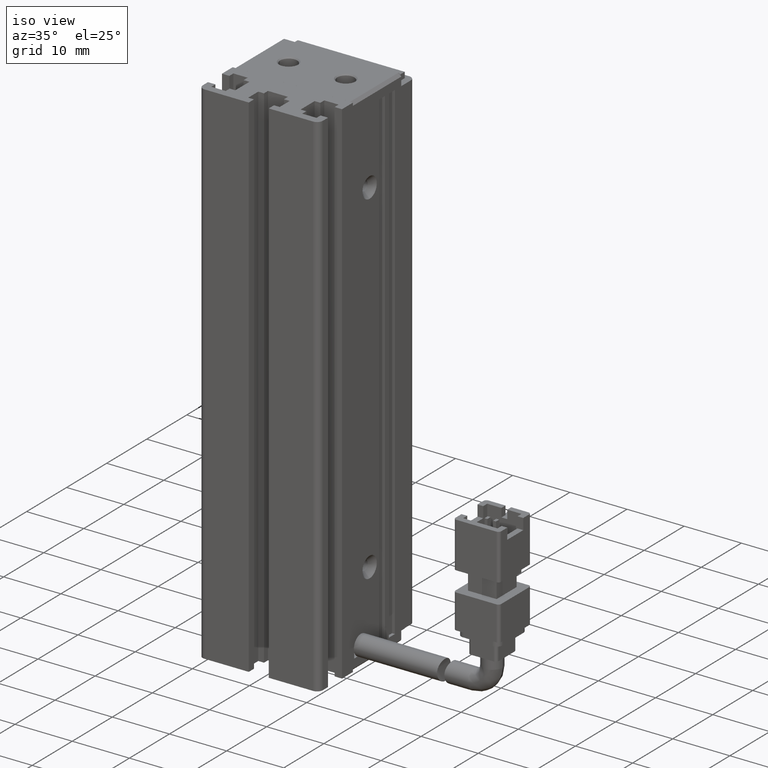
[diagram: clean part render]
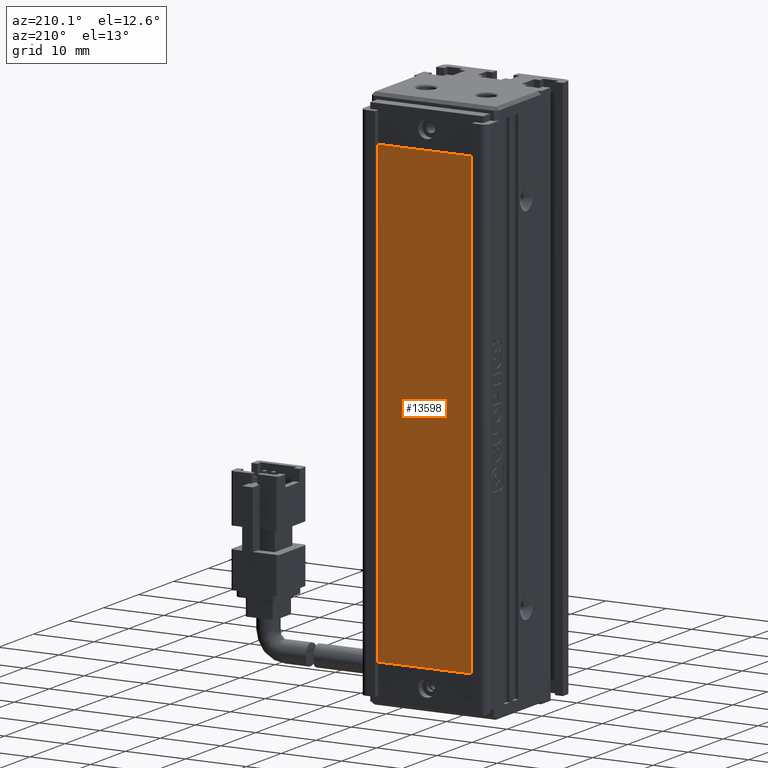
[diagram: tour spotlight — one face highlighted and labeled with its STEP entity id]
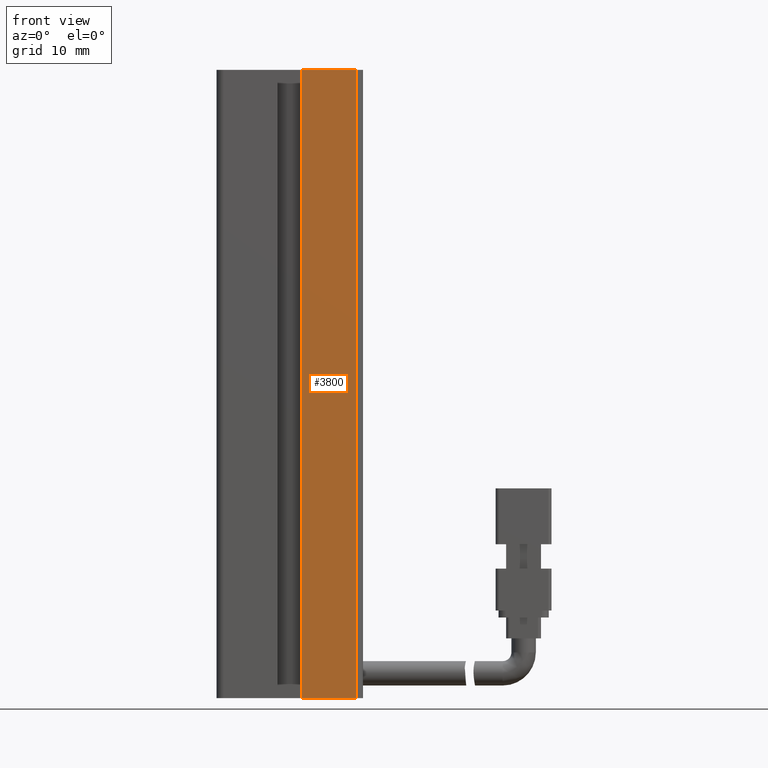
[diagram: tour spotlight — one face highlighted and labeled with its STEP entity id]
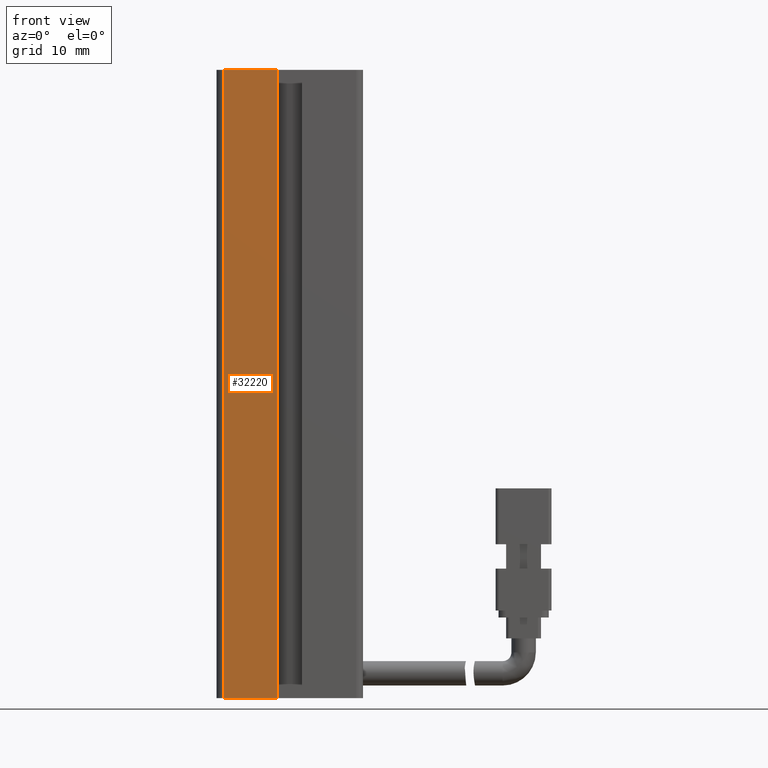
[diagram: tour spotlight — one face highlighted and labeled with its STEP entity id]
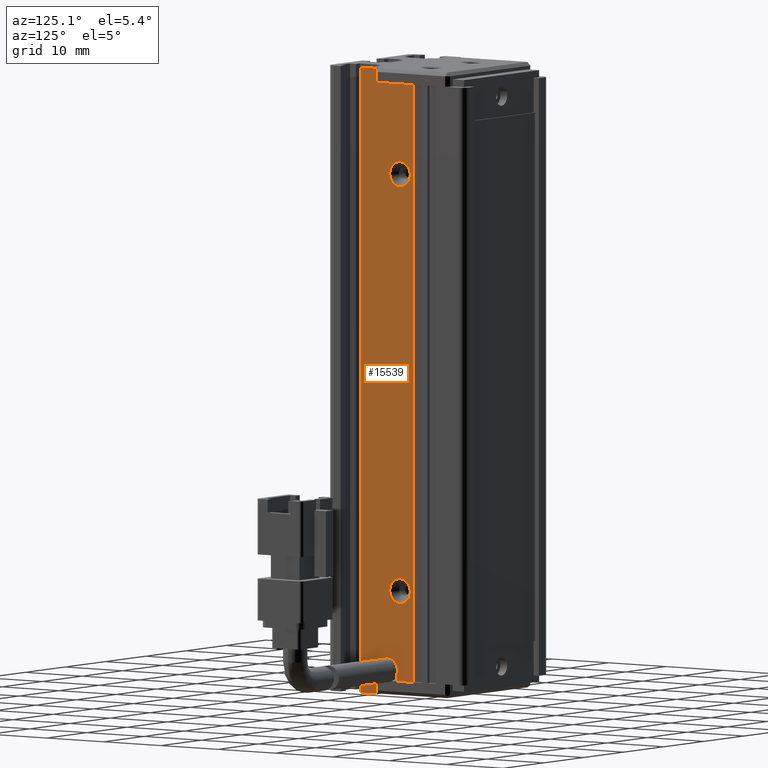
[diagram: tour spotlight — one face highlighted and labeled with its STEP entity id]
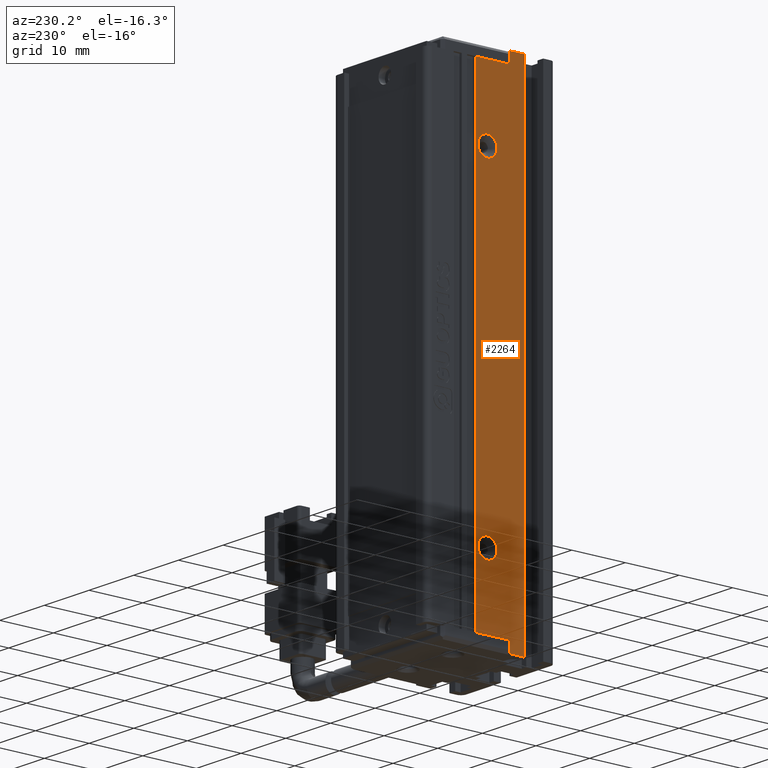
[diagram: tour spotlight — one face highlighted and labeled with its STEP entity id]
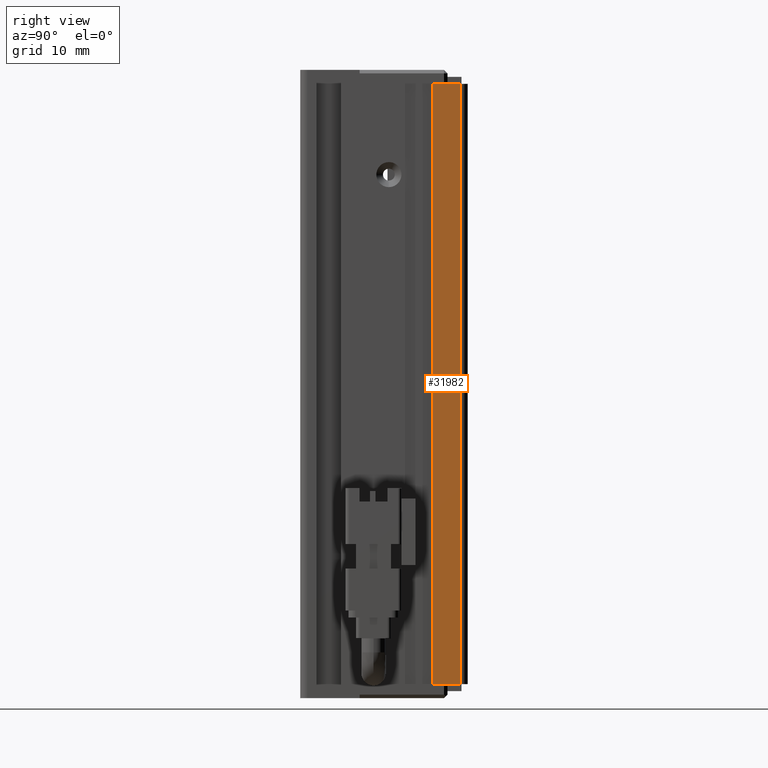
[diagram: tour spotlight — one face highlighted and labeled with its STEP entity id]
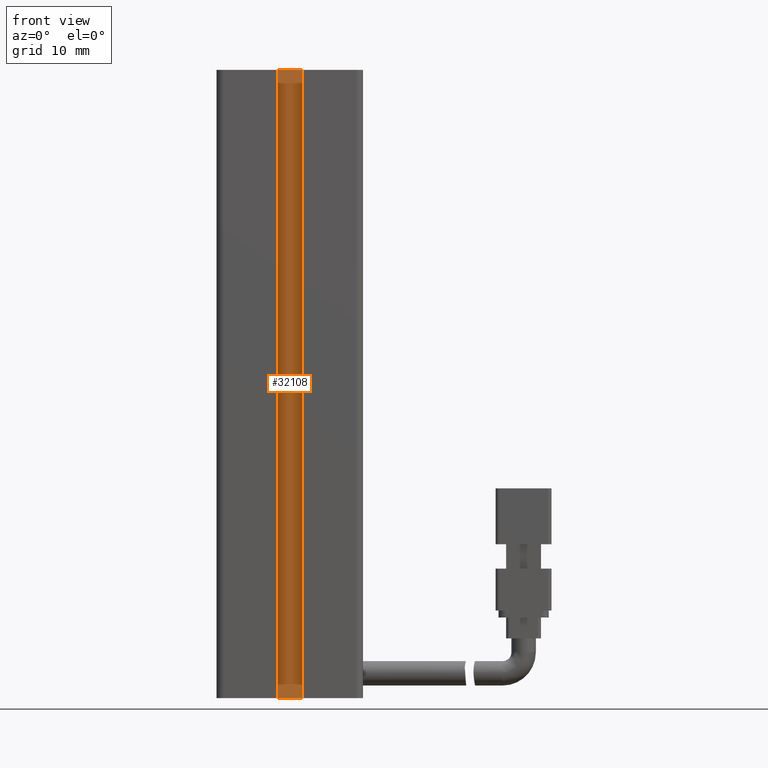
[diagram: tour spotlight — one face highlighted and labeled with its STEP entity id]
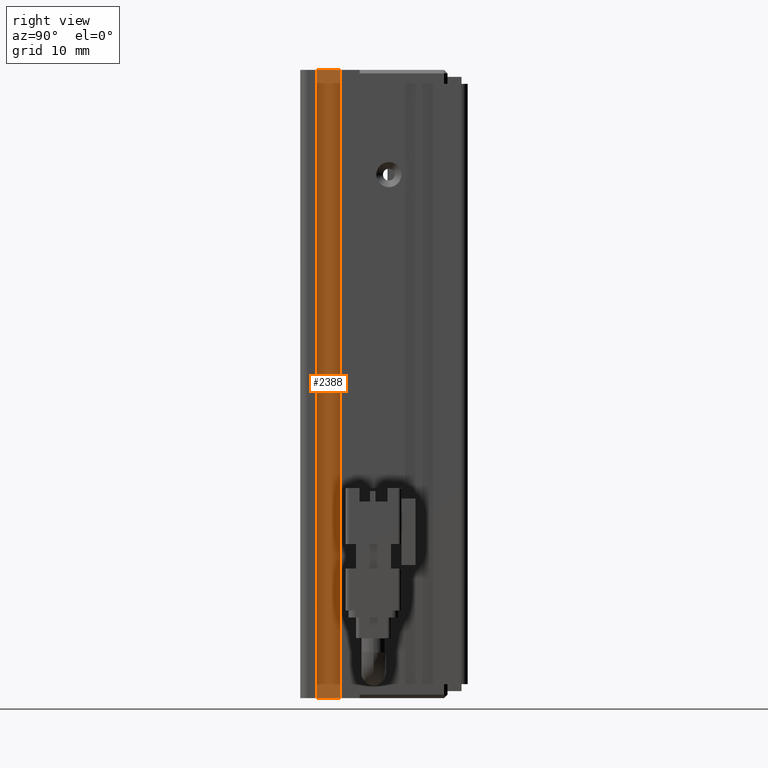
[diagram: tour spotlight — one face highlighted and labeled with its STEP entity id]
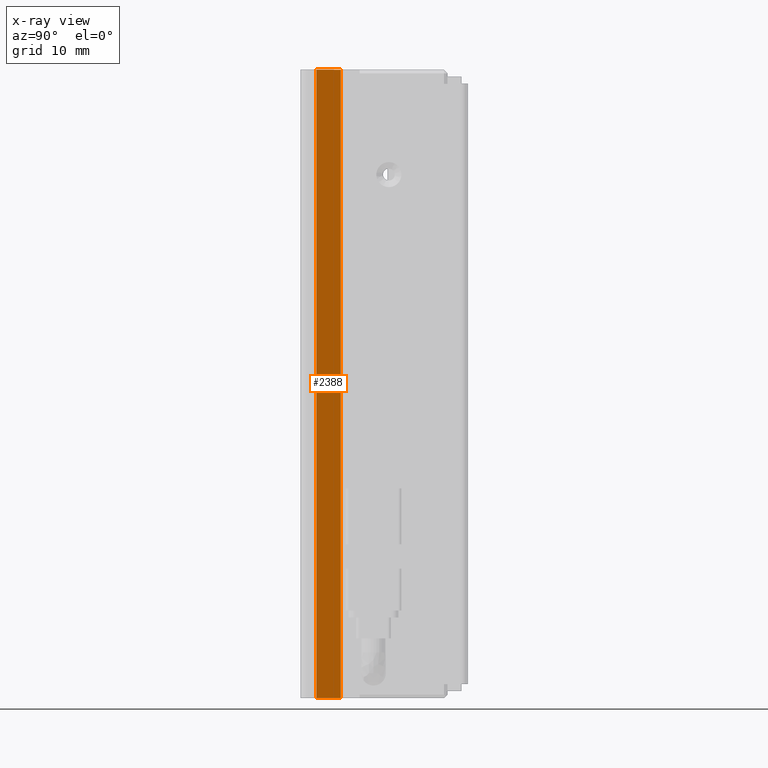
[diagram: x-ray of the same camera — body ghosted, this tour face saturated]
A machine part: a face-by-face anatomy tour. The part has 728 B-rep faces; the first image is the clean iso view, then the 8 largest visible faces are spotlighted one at a time (largest first), each with its STEP entity span.

Face 1 — auxiliary view, entity #13598. In plain terms, the highlighted planar face has unit normal (0, 1, 0).
Definition (entity closure, byte-faithful):
#2908 = CARTESIAN_POINT ( 'NONE',  ( 48.92537974683541800, 34.29073232304836700, -77.00000000000001400 ) ) ;
#4388 = DIRECTION ( 'NONE',  ( 0.0000000000000000000, 1.000000000000000000, 0.0000000000000000000 ) ) ;
#5056 = LINE ( 'NONE', #27077, #25943 ) ;
#5770 = ORIENTED_EDGE ( 'NONE', *, *, #15639, .T. ) ;
#5890 = VECTOR ( 'NONE', #11489, 1000.000000000000000 ) ;
#6105 = ORIENTED_EDGE ( 'NONE', *, *, #28098, .T. ) ;
#8307 = EDGE_CURVE ( 'NONE', #17371, #19993, #5056, .T. ) ;
#9202 = EDGE_CURVE ( 'NONE', #19993, #20214, #19381, .T. ) ;
#10523 = ORIENTED_EDGE ( 'NONE', *, *, #9202, .T. ) ;
#11387 = CARTESIAN_POINT ( 'NONE',  ( 32.92537974683542500, 34.29073232304836700, -153.0000000000000300 ) ) ;
#11489 = DIRECTION ( 'NONE',  ( 1.000000000000000000, 0.0000000000000000000, 0.0000000000000000000 ) ) ;
#13598 = ADVANCED_FACE ( 'NONE', ( #16987 ), #16823, .T. ) ;
#13846 = CARTESIAN_POINT ( 'NONE',  ( 32.92537974683542500, 34.29073232304836700, -77.00000000000001400 ) ) ;
#15639 = EDGE_CURVE ( 'NONE', #28703, #17371, #31903, .T. ) ;
#16823 = PLANE ( 'NONE',  #29497 ) ;
#16987 = FACE_OUTER_BOUND ( 'NONE', #21064, .T. ) ;
#17371 = VERTEX_POINT ( 'NONE', #18550 ) ;
#17803 = VECTOR ( 'NONE', #23636, 1000.000000000000000 ) ;
#18550 = CARTESIAN_POINT ( 'NONE',  ( 48.92537974683541800, 34.29073232304836700, -153.0000000000000300 ) ) ;
#19381 = LINE ( 'NONE', #11387, #17803 ) ;
#19993 = VERTEX_POINT ( 'NONE', #23622 ) ;
#20214 = VERTEX_POINT ( 'NONE', #32039 ) ;
#20246 = CARTESIAN_POINT ( 'NONE',  ( 48.92537974683541800, 34.29073232304836700, -77.00000000000001400 ) ) ;
#21064 = EDGE_LOOP ( 'NONE', ( #10523, #6105, #5770, #25595 ) ) ;
#21856 = DIRECTION ( 'NONE',  ( -1.000000000000000000, 0.0000000000000000000, 0.0000000000000000000 ) ) ;
#22009 = CARTESIAN_POINT ( 'NONE',  ( 0.0000000000000000000, 34.29073232304836700, 0.0000000000000000000 ) ) ;
#22548 = LINE ( 'NONE', #13846, #5890 ) ;
#23622 = CARTESIAN_POINT ( 'NONE',  ( 32.92537974683542500, 34.29073232304836700, -153.0000000000000300 ) ) ;
#23636 = DIRECTION ( 'NONE',  ( 0.0000000000000000000, 0.0000000000000000000, 1.000000000000000000 ) ) ;
#25595 = ORIENTED_EDGE ( 'NONE', *, *, #8307, .T. ) ;
#25943 = VECTOR ( 'NONE', #21856, 1000.000000000000000 ) ;
#27077 = CARTESIAN_POINT ( 'NONE',  ( 48.92537974683541800, 34.29073232304836700, -153.0000000000000300 ) ) ;
#27986 = VECTOR ( 'NONE', #29868, 1000.000000000000000 ) ;
#28098 = EDGE_CURVE ( 'NONE', #20214, #28703, #22548, .T. ) ;
#28703 = VERTEX_POINT ( 'NONE', #20246 ) ;
#29497 = AXIS2_PLACEMENT_3D ( 'NONE', #22009, #4388, #31641 ) ;
#29868 = DIRECTION ( 'NONE',  ( 0.0000000000000000000, 0.0000000000000000000, -1.000000000000000000 ) ) ;
#31641 = DIRECTION ( 'NONE',  ( 0.0000000000000000000, -0.0000000000000000000, 1.000000000000000000 ) ) ;
#31903 = LINE ( 'NONE', #2908, #27986 ) ;
#32039 = CARTESIAN_POINT ( 'NONE',  ( 32.92537974683542500, 34.29073232304836700, -77.00000000000001400 ) ) ;

Face 2 — front view, entity #3800. In plain terms, the highlighted planar face has unit normal (0, 1, 0).
Definition (entity closure, byte-faithful):
#171 = VERTEX_POINT ( 'NONE', #16653 ) ;
#2813 = DIRECTION ( 'NONE',  ( 0.0000000000000000000, 1.000000000000000000, 0.0000000000000000000 ) ) ;
#3394 = EDGE_LOOP ( 'NONE', ( #9412, #5244, #24351, #21993 ) ) ;
#3800 = ADVANCED_FACE ( 'NONE', ( #16662 ), #4821, .F. ) ;
#4821 = PLANE ( 'NONE',  #25162 ) ;
#5244 = ORIENTED_EDGE ( 'NONE', *, *, #8665, .F. ) ;
#6530 = VERTEX_POINT ( 'NONE', #26382 ) ;
#7306 = VECTOR ( 'NONE', #16198, 1000.000000000000000 ) ;
#7791 = CARTESIAN_POINT ( 'NONE',  ( 40.92537974683542500, 10.99073232304837000, -160.0000000000000000 ) ) ;
#8665 = EDGE_CURVE ( 'NONE', #23075, #6530, #9991, .T. ) ;
#9144 = VECTOR ( 'NONE', #17753, 1000.000000000000000 ) ;
#9412 = ORIENTED_EDGE ( 'NONE', *, *, #11932, .F. ) ;
#9991 = LINE ( 'NONE', #18501, #7306 ) ;
#10425 = VECTOR ( 'NONE', #20330, 1000.000000000000000 ) ;
#11932 = EDGE_CURVE ( 'NONE', #6530, #20677, #31885, .T. ) ;
#14674 = LINE ( 'NONE', #25311, #10425 ) ;
#16072 = CARTESIAN_POINT ( 'NONE',  ( 42.67537974683542500, 10.99073232304837000, -70.00000000000000000 ) ) ;
#16168 = EDGE_CURVE ( 'NONE', #171, #23075, #14674, .T. ) ;
#16198 = DIRECTION ( 'NONE',  ( 1.000000000000000000, 0.0000000000000000000, 0.0000000000000000000 ) ) ;
#16653 = CARTESIAN_POINT ( 'NONE',  ( 42.67537974683542500, 10.99073232304837000, -160.0000000000000000 ) ) ;
#16662 = FACE_OUTER_BOUND ( 'NONE', #3394, .T. ) ;
#17753 = DIRECTION ( 'NONE',  ( 1.000000000000000000, 0.0000000000000000000, 0.0000000000000000000 ) ) ;
#18501 = CARTESIAN_POINT ( 'NONE',  ( 40.92537974683542500, 10.99073232304837000, -70.00000000000000000 ) ) ;
#20330 = DIRECTION ( 'NONE',  ( 0.0000000000000000000, -0.0000000000000000000, 1.000000000000000000 ) ) ;
#20346 = EDGE_CURVE ( 'NONE', #171, #20677, #25405, .T. ) ;
#20677 = VERTEX_POINT ( 'NONE', #26199 ) ;
#21993 = ORIENTED_EDGE ( 'NONE', *, *, #20346, .T. ) ;
#23075 = VERTEX_POINT ( 'NONE', #16072 ) ;
#24351 = ORIENTED_EDGE ( 'NONE', *, *, #16168, .F. ) ;
#25162 = AXIS2_PLACEMENT_3D ( 'NONE', #27794, #2813, #27573 ) ;
#25311 = CARTESIAN_POINT ( 'NONE',  ( 42.67537974683542500, 10.99073232304837000, -70.00000000000000000 ) ) ;
#25405 = LINE ( 'NONE', #7791, #9144 ) ;
#26199 = CARTESIAN_POINT ( 'NONE',  ( 50.42537974683541800, 10.99073232304837000, -160.0000000000000000 ) ) ;
#26382 = CARTESIAN_POINT ( 'NONE',  ( 50.42537974683541800, 10.99073232304837000, -70.00000000000000000 ) ) ;
#26848 = DIRECTION ( 'NONE',  ( -0.0000000000000000000, 0.0000000000000000000, -1.000000000000000000 ) ) ;
#27573 = DIRECTION ( 'NONE',  ( 0.0000000000000000000, -0.0000000000000000000, 1.000000000000000000 ) ) ;
#27794 = CARTESIAN_POINT ( 'NONE',  ( 40.92537974683542500, 10.99073232304837000, -70.00000000000000000 ) ) ;
#30711 = VECTOR ( 'NONE', #26848, 1000.000000000000000 ) ;
#31885 = LINE ( 'NONE', #31896, #30711 ) ;
#31896 = CARTESIAN_POINT ( 'NONE',  ( 50.42537974683541800, 10.99073232304837000, -70.00000000000000000 ) ) ;

Face 3 — front view, entity #32220. In plain terms, the highlighted planar face has unit normal (0, -1, 0).
Definition (entity closure, byte-faithful):
#930 = DIRECTION ( 'NONE',  ( 0.0000000000000000000, -1.000000000000000000, 0.0000000000000000000 ) ) ;
#1557 = DIRECTION ( 'NONE',  ( 0.0000000000000000000, -0.0000000000000000000, -1.000000000000000000 ) ) ;
#3853 = CARTESIAN_POINT ( 'NONE',  ( 31.42537974683542900, 10.99073232304837000, -70.00000000000000000 ) ) ;
#3880 = VERTEX_POINT ( 'NONE', #7943 ) ;
#4912 = CARTESIAN_POINT ( 'NONE',  ( 39.17537974683542500, 10.99073232304837000, -70.00000000000000000 ) ) ;
#5185 = LINE ( 'NONE', #15061, #19899 ) ;
#5486 = ORIENTED_EDGE ( 'NONE', *, *, #30587, .T. ) ;
#5545 = DIRECTION ( 'NONE',  ( 1.000000000000000000, 0.0000000000000000000, 0.0000000000000000000 ) ) ;
#7943 = CARTESIAN_POINT ( 'NONE',  ( 31.42537974683542900, 10.99073232304837000, -70.00000000000000000 ) ) ;
#10907 = DIRECTION ( 'NONE',  ( 0.0000000000000000000, -0.0000000000000000000, -1.000000000000000000 ) ) ;
#10937 = VECTOR ( 'NONE', #1557, 1000.000000000000000 ) ;
#12715 = CARTESIAN_POINT ( 'NONE',  ( 39.17537974683542500, 10.99073232304837000, -160.0000000000000000 ) ) ;
#13167 = CARTESIAN_POINT ( 'NONE',  ( 40.92537974683542500, 10.99073232304837000, -70.00000000000000000 ) ) ;
#14332 = EDGE_LOOP ( 'NONE', ( #14405, #29187, #20142, #5486 ) ) ;
#14405 = ORIENTED_EDGE ( 'NONE', *, *, #18086, .F. ) ;
#14958 = VECTOR ( 'NONE', #16124, 1000.000000000000000 ) ;
#15061 = CARTESIAN_POINT ( 'NONE',  ( 40.92537974683542500, 10.99073232304837000, -70.00000000000000000 ) ) ;
#15824 = VECTOR ( 'NONE', #30501, 1000.000000000000000 ) ;
#16124 = DIRECTION ( 'NONE',  ( -0.0000000000000000000, 0.0000000000000000000, 1.000000000000000000 ) ) ;
#17980 = VERTEX_POINT ( 'NONE', #4912 ) ;
#18086 = EDGE_CURVE ( 'NONE', #3880, #17980, #5185, .T. ) ;
#19899 = VECTOR ( 'NONE', #5545, 1000.000000000000000 ) ;
#20142 = ORIENTED_EDGE ( 'NONE', *, *, #24153, .T. ) ;
#20176 = FACE_OUTER_BOUND ( 'NONE', #14332, .T. ) ;
#21313 = CARTESIAN_POINT ( 'NONE',  ( 31.42537974683542900, 10.99073232304837000, -160.0000000000000000 ) ) ;
#21325 = EDGE_CURVE ( 'NONE', #3880, #27375, #23780, .T. ) ;
#23780 = LINE ( 'NONE', #3853, #10937 ) ;
#24153 = EDGE_CURVE ( 'NONE', #27375, #27276, #25118, .T. ) ;
#25118 = LINE ( 'NONE', #28301, #15824 ) ;
#27276 = VERTEX_POINT ( 'NONE', #12715 ) ;
#27375 = VERTEX_POINT ( 'NONE', #21313 ) ;
#28301 = CARTESIAN_POINT ( 'NONE',  ( 40.92537974683542500, 10.99073232304837000, -160.0000000000000000 ) ) ;
#29167 = AXIS2_PLACEMENT_3D ( 'NONE', #13167, #930, #10907 ) ;
#29187 = ORIENTED_EDGE ( 'NONE', *, *, #21325, .T. ) ;
#30403 = CARTESIAN_POINT ( 'NONE',  ( 39.17537974683542500, 10.99073232304837000, -70.00000000000000000 ) ) ;
#30501 = DIRECTION ( 'NONE',  ( 1.000000000000000000, 0.0000000000000000000, 0.0000000000000000000 ) ) ;
#30587 = EDGE_CURVE ( 'NONE', #27276, #17980, #31725, .T. ) ;
#30728 = PLANE ( 'NONE',  #29167 ) ;
#31725 = LINE ( 'NONE', #30403, #14958 ) ;
#32220 = ADVANCED_FACE ( 'NONE', ( #20176 ), #30728, .T. ) ;

Face 4 — auxiliary view, entity #15539. In plain terms, the highlighted planar face has unit normal (-1, 0, 0).
Definition (entity closure, byte-faithful):
#315 = VERTEX_POINT ( 'NONE', #16830 ) ;
#378 = EDGE_CURVE ( 'NONE', #29339, #7699, #19004, .T. ) ;
#669 = CARTESIAN_POINT ( 'NONE',  ( 51.42537974683541800, 19.84073232304837100, -158.0000000000000000 ) ) ;
#697 = CARTESIAN_POINT ( 'NONE',  ( 51.42537974683541100, 21.49073232304837000, -156.4500000000000200 ) ) ;
#1064 = VECTOR ( 'NONE', #11114, 1000.000000000000000 ) ;
#1279 = CARTESIAN_POINT ( 'NONE',  ( 51.42537974684406500, 23.69073232304837300, -86.80000000011659700 ) ) ;
#1283 = EDGE_LOOP ( 'NONE', ( #17372, #28113 ) ) ;
#1512 = VECTOR ( 'NONE', #19646, 1000.000000000000000 ) ;
#1759 = ORIENTED_EDGE ( 'NONE', *, *, #24275, .F. ) ;
#1824 = CARTESIAN_POINT ( 'NONE',  ( 51.42537974683541800, 19.49073232304837000, -70.00000000000000000 ) ) ;
#2280 = DIRECTION ( 'NONE',  ( -0.0000000000000000000, -1.000000000000000000, 0.0000000000000000000 ) ) ;
#2363 = FACE_OUTER_BOUND ( 'NONE', #20242, .T. ) ;
#2832 = VECTOR ( 'NONE', #2280, 1000.000000000000000 ) ;
#3016 = AXIS2_PLACEMENT_3D ( 'NONE', #12590, #5469, #13022 ) ;
#3235 = VERTEX_POINT ( 'NONE', #10345 ) ;
#3367 = DIRECTION ( 'NONE',  ( 0.0000000000000000000, 0.0000000000000000000, -1.000000000000000000 ) ) ;
#3532 = LINE ( 'NONE', #1824, #14771 ) ;
#3637 = LINE ( 'NONE', #4705, #2832 ) ;
#3788 = CARTESIAN_POINT ( 'NONE',  ( 51.42537974683541800, 16.79073232304837000, -160.0000000000000000 ) ) ;
#3986 = EDGE_CURVE ( 'NONE', #8584, #25689, #19744, .T. ) ;
#4172 = VERTEX_POINT ( 'NONE', #20035 ) ;
#4283 = AXIS2_PLACEMENT_3D ( 'NONE', #7166, #19540, #4898 ) ;
#4705 = CARTESIAN_POINT ( 'NONE',  ( 51.42537974683541800, 7.083797468354437600, -160.0000000000000000 ) ) ;
#4724 = CARTESIAN_POINT ( 'NONE',  ( 51.42537974683541800, 19.49073232304837000, -158.0000000000000000 ) ) ;
#4779 = ORIENTED_EDGE ( 'NONE', *, *, #22777, .F. ) ;
#4898 = DIRECTION ( 'NONE',  ( 0.0000000000000000000, 0.0000000000000000000, -1.000000000000000000 ) ) ;
#4979 = ORIENTED_EDGE ( 'NONE', *, *, #28661, .F. ) ;
#5123 = CARTESIAN_POINT ( 'NONE',  ( 51.42537974683541100, 23.14073232304837200, -158.0000000000000000 ) ) ;
#5129 = CARTESIAN_POINT ( 'NONE',  ( 51.42537974683541800, 19.49073232304837000, -70.00000000000000000 ) ) ;
#5469 = DIRECTION ( 'NONE',  ( 1.000000000000000000, -0.0000000000000000000, 0.0000000000000000000 ) ) ;
#5592 = AXIS2_PLACEMENT_3D ( 'NONE', #28030, #12892, #3367 ) ;
#5746 = VERTEX_POINT ( 'NONE', #5123 ) ;
#6504 = CIRCLE ( 'NONE', #3016, 1.800000000116597200 ) ;
#6649 = FACE_BOUND ( 'NONE', #1283, .T. ) ;
#7166 = CARTESIAN_POINT ( 'NONE',  ( 51.42537974684406500, 23.69073232304837300, -85.00000000000000000 ) ) ;
#7470 = ORIENTED_EDGE ( 'NONE', *, *, #3986, .T. ) ;
#7502 = CARTESIAN_POINT ( 'NONE',  ( 51.42537974683541800, 7.083797468354437600, -70.00000000000000000 ) ) ;
#7699 = VERTEX_POINT ( 'NONE', #11877 ) ;
#7731 = VERTEX_POINT ( 'NONE', #24244 ) ;
#8008 = AXIS2_PLACEMENT_3D ( 'NONE', #20653, #30692, #15740 ) ;
#8584 = VERTEX_POINT ( 'NONE', #669 ) ;
#8813 = EDGE_CURVE ( 'NONE', #28478, #5746, #18920, .T. ) ;
#8845 = ORIENTED_EDGE ( 'NONE', *, *, #15537, .F. ) ;
#8915 = VERTEX_POINT ( 'NONE', #4724 ) ;
#9579 = DIRECTION ( 'NONE',  ( 0.0000000000000000000, 1.000000000000000000, -0.0000000000000000000 ) ) ;
#10345 = CARTESIAN_POINT ( 'NONE',  ( 51.42537974683542500, 19.49073232304837000, -72.00000000000001400 ) ) ;
#11114 = DIRECTION ( 'NONE',  ( -0.0000000000000000000, -0.0000000000000000000, -1.000000000000000000 ) ) ;
#11877 = CARTESIAN_POINT ( 'NONE',  ( 51.42537974683542500, 19.49073232304837000, -70.00000000000000000 ) ) ;
#12043 = CARTESIAN_POINT ( 'NONE',  ( 51.42537974683541100, 23.14073232304837200, -158.0000000000000000 ) ) ;
#12211 = EDGE_CURVE ( 'NONE', #18533, #4172, #16361, .T. ) ;
#12245 = AXIS2_PLACEMENT_3D ( 'NONE', #697, #28101, #20471 ) ;
#12335 = VECTOR ( 'NONE', #23043, 1000.000000000000000 ) ;
#12590 = CARTESIAN_POINT ( 'NONE',  ( 51.42537974684406500, 23.69073232304837300, -85.00000000000000000 ) ) ;
#12737 = ORIENTED_EDGE ( 'NONE', *, *, #378, .F. ) ;
#12752 = LINE ( 'NONE', #5129, #1512 ) ;
#12892 = DIRECTION ( 'NONE',  ( 1.000000000000000000, 0.0000000000000000000, 0.0000000000000000000 ) ) ;
#13022 = DIRECTION ( 'NONE',  ( 0.0000000000000000000, 0.0000000000000000000, -1.000000000000000000 ) ) ;
#13033 = CARTESIAN_POINT ( 'NONE',  ( 51.42537974683541800, 19.84073232304837100, -156.4500000000000200 ) ) ;
#13130 = CARTESIAN_POINT ( 'NONE',  ( 51.42537974683541800, 16.79073232304837000, -70.00000000000000000 ) ) ;
#13359 = DIRECTION ( 'NONE',  ( -0.0000000000000000000, -1.000000000000000000, 0.0000000000000000000 ) ) ;
#13464 = CARTESIAN_POINT ( 'NONE',  ( 51.42537974683541800, 25.99073232304837300, -70.00000000000000000 ) ) ;
#13819 = VECTOR ( 'NONE', #19665, 1000.000000000000000 ) ;
#14771 = VECTOR ( 'NONE', #29075, 1000.000000000000000 ) ;
#14910 = CARTESIAN_POINT ( 'NONE',  ( 51.42537974683541800, 16.79073232304837000, -70.00000000000000000 ) ) ;
#15068 = DIRECTION ( 'NONE',  ( 0.0000000000000000000, 1.000000000000000000, -0.0000000000000000000 ) ) ;
#15251 = EDGE_CURVE ( 'NONE', #31929, #29339, #19852, .T. ) ;
#15537 = EDGE_CURVE ( 'NONE', #17772, #19939, #29569, .T. ) ;
#15539 = ADVANCED_FACE ( 'NONE', ( #6649, #28017, #2363 ), #21785, .F. ) ;
#15740 = DIRECTION ( 'NONE',  ( 0.0000000000000000000, 0.0000000000000000000, -1.000000000000000000 ) ) ;
#16361 = CIRCLE ( 'NONE', #8008, 1.799999999975626700 ) ;
#16694 = CARTESIAN_POINT ( 'NONE',  ( 51.42537974683541100, 23.14073232304837200, -156.4499999999999900 ) ) ;
#16830 = CARTESIAN_POINT ( 'NONE',  ( 51.42537974683541800, 19.49073232304837000, -160.0000000000000000 ) ) ;
#17372 = ORIENTED_EDGE ( 'NONE', *, *, #12211, .F. ) ;
#17517 = VECTOR ( 'NONE', #29835, 1000.000000000000000 ) ;
#17772 = VERTEX_POINT ( 'NONE', #32161 ) ;
#18036 = EDGE_CURVE ( 'NONE', #315, #31929, #3637, .T. ) ;
#18156 = VERTEX_POINT ( 'NONE', #22866 ) ;
#18439 = EDGE_CURVE ( 'NONE', #315, #8915, #3532, .T. ) ;
#18533 = VERTEX_POINT ( 'NONE', #19201 ) ;
#18640 = VECTOR ( 'NONE', #19819, 1000.000000000000000 ) ;
#18825 = EDGE_CURVE ( 'NONE', #7731, #5746, #23236, .T. ) ;
#18920 = LINE ( 'NONE', #12043, #13819 ) ;
#19004 = LINE ( 'NONE', #7502, #25148 ) ;
#19201 = CARTESIAN_POINT ( 'NONE',  ( 51.42537974687135000, 23.69073232304837300, -146.7999999999756500 ) ) ;
#19540 = DIRECTION ( 'NONE',  ( 1.000000000000000000, -0.0000000000000000000, 0.0000000000000000000 ) ) ;
#19646 = DIRECTION ( 'NONE',  ( -0.0000000000000000000, 0.0000000000000000000, 1.000000000000000000 ) ) ;
#19665 = DIRECTION ( 'NONE',  ( -0.0000000000000000000, 2.238352872228134100E-015, -1.000000000000000000 ) ) ;
#19744 = LINE ( 'NONE', #30522, #12335 ) ;
#19819 = DIRECTION ( 'NONE',  ( -0.0000000000000000000, -1.000000000000000000, 0.0000000000000000000 ) ) ;
#19852 = LINE ( 'NONE', #14910, #17517 ) ;
#19939 = VERTEX_POINT ( 'NONE', #1279 ) ;
#20035 = CARTESIAN_POINT ( 'NONE',  ( 51.42537974687135000, 23.69073232304837300, -143.2000000000244000 ) ) ;
#20242 = EDGE_LOOP ( 'NONE', ( #7470, #23534, #26751, #28046, #1759, #4779, #24337, #12737, #25968, #31676, #28862, #4979 ) ) ;
#20471 = DIRECTION ( 'NONE',  ( 0.0000000000000000000, 1.000000000000000000, 0.0000000000000000000 ) ) ;
#20653 = CARTESIAN_POINT ( 'NONE',  ( 51.42537974687135000, 23.69073232304837300, -145.0000000000000300 ) ) ;
#21262 = LINE ( 'NONE', #13464, #1064 ) ;
#21410 = LINE ( 'NONE', #21719, #26855 ) ;
#21719 = CARTESIAN_POINT ( 'NONE',  ( 51.42537974683541800, 7.083797468354437600, -72.00000000000001400 ) ) ;
#21785 = PLANE ( 'NONE',  #28612 ) ;
#21996 = DIRECTION ( 'NONE',  ( 0.0000000000000000000, 0.0000000000000000000, 1.000000000000000000 ) ) ;
#22777 = EDGE_CURVE ( 'NONE', #3235, #18156, #21410, .T. ) ;
#22866 = CARTESIAN_POINT ( 'NONE',  ( 51.42537974683541800, 25.99073232304837300, -72.00000000000001400 ) ) ;
#23043 = DIRECTION ( 'NONE',  ( -0.0000000000000000000, 1.119176436114067100E-015, 1.000000000000000000 ) ) ;
#23236 = LINE ( 'NONE', #23356, #26356 ) ;
#23356 = CARTESIAN_POINT ( 'NONE',  ( 51.42537974683541800, 7.083797468354437600, -158.0000000000000000 ) ) ;
#23494 = EDGE_CURVE ( 'NONE', #3235, #7699, #12752, .T. ) ;
#23534 = ORIENTED_EDGE ( 'NONE', *, *, #32159, .F. ) ;
#24244 = CARTESIAN_POINT ( 'NONE',  ( 51.42537974683541800, 25.99073232304837300, -158.0000000000000000 ) ) ;
#24275 = EDGE_CURVE ( 'NONE', #18156, #7731, #21262, .T. ) ;
#24337 = ORIENTED_EDGE ( 'NONE', *, *, #23494, .T. ) ;
#25148 = VECTOR ( 'NONE', #15068, 1000.000000000000000 ) ;
#25480 = EDGE_CURVE ( 'NONE', #19939, #17772, #6504, .T. ) ;
#25689 = VERTEX_POINT ( 'NONE', #13033 ) ;
#25968 = ORIENTED_EDGE ( 'NONE', *, *, #15251, .F. ) ;
#26023 = ORIENTED_EDGE ( 'NONE', *, *, #25480, .F. ) ;
#26356 = VECTOR ( 'NONE', #13359, 1000.000000000000000 ) ;
#26751 = ORIENTED_EDGE ( 'NONE', *, *, #8813, .T. ) ;
#26855 = VECTOR ( 'NONE', #9579, 1000.000000000000000 ) ;
#26895 = CARTESIAN_POINT ( 'NONE',  ( 51.42537974683541800, 7.083797468354437600, -158.0000000000000000 ) ) ;
#27115 = CARTESIAN_POINT ( 'NONE',  ( 51.42537974683541800, 7.083797468354437600, -70.00000000000000000 ) ) ;
#27845 = EDGE_LOOP ( 'NONE', ( #26023, #8845 ) ) ;
#28017 = FACE_BOUND ( 'NONE', #27845, .T. ) ;
#28030 = CARTESIAN_POINT ( 'NONE',  ( 51.42537974687135000, 23.69073232304837300, -145.0000000000000300 ) ) ;
#28046 = ORIENTED_EDGE ( 'NONE', *, *, #18825, .F. ) ;
#28101 = DIRECTION ( 'NONE',  ( 1.000000000000000000, 5.687617954022316600E-016, -0.0000000000000000000 ) ) ;
#28113 = ORIENTED_EDGE ( 'NONE', *, *, #30890, .F. ) ;
#28478 = VERTEX_POINT ( 'NONE', #16694 ) ;
#28612 = AXIS2_PLACEMENT_3D ( 'NONE', #27115, #32055, #21996 ) ;
#28661 = EDGE_CURVE ( 'NONE', #8584, #8915, #31873, .T. ) ;
#28862 = ORIENTED_EDGE ( 'NONE', *, *, #18439, .T. ) ;
#29075 = DIRECTION ( 'NONE',  ( -0.0000000000000000000, 0.0000000000000000000, 1.000000000000000000 ) ) ;
#29339 = VERTEX_POINT ( 'NONE', #13130 ) ;
#29569 = CIRCLE ( 'NONE', #4283, 1.800000000116597200 ) ;
#29708 = CIRCLE ( 'NONE', #5592, 1.799999999975626700 ) ;
#29835 = DIRECTION ( 'NONE',  ( 0.0000000000000000000, 0.0000000000000000000, 1.000000000000000000 ) ) ;
#30522 = CARTESIAN_POINT ( 'NONE',  ( 51.42537974683541800, 19.84073232304837100, -158.0000000000000000 ) ) ;
#30692 = DIRECTION ( 'NONE',  ( 1.000000000000000000, 0.0000000000000000000, 0.0000000000000000000 ) ) ;
#30890 = EDGE_CURVE ( 'NONE', #4172, #18533, #29708, .T. ) ;
#31676 = ORIENTED_EDGE ( 'NONE', *, *, #18036, .F. ) ;
#31873 = LINE ( 'NONE', #26895, #18640 ) ;
#31884 = CIRCLE ( 'NONE', #12245, 1.649999999999998600 ) ;
#31929 = VERTEX_POINT ( 'NONE', #3788 ) ;
#32055 = DIRECTION ( 'NONE',  ( -1.000000000000000000, 0.0000000000000000000, 0.0000000000000000000 ) ) ;
#32159 = EDGE_CURVE ( 'NONE', #28478, #25689, #31884, .T. ) ;
#32161 = CARTESIAN_POINT ( 'NONE',  ( 51.42537974684406500, 23.69073232304837300, -83.19999999988340300 ) ) ;

Face 5 — auxiliary view, entity #2264. In plain terms, the highlighted planar face has unit normal (-1, 0, 0).
Definition (entity closure, byte-faithful):
#596 = EDGE_LOOP ( 'NONE', ( #2935, #16126, #12668, #15994, #7913, #5438, #13279, #20362 ) ) ;
#717 = CIRCLE ( 'NONE', #3795, 1.799999999975626700 ) ;
#872 = EDGE_CURVE ( 'NONE', #15685, #27677, #30967, .T. ) ;
#997 = AXIS2_PLACEMENT_3D ( 'NONE', #19068, #19168, #24212 ) ;
#1437 = DIRECTION ( 'NONE',  ( 0.0000000000000000000, -0.0000000000000000000, -1.000000000000000000 ) ) ;
#1728 = VECTOR ( 'NONE', #23270, 1000.000000000000000 ) ;
#1949 = CIRCLE ( 'NONE', #19639, 1.800000000059753800 ) ;
#2264 = ADVANCED_FACE ( 'NONE', ( #7822, #18313, #29186 ), #9279, .T. ) ;
#2412 = DIRECTION ( 'NONE',  ( -0.0000000000000000000, -1.000000000000000000, 0.0000000000000000000 ) ) ;
#2577 = ORIENTED_EDGE ( 'NONE', *, *, #23900, .T. ) ;
#2935 = ORIENTED_EDGE ( 'NONE', *, *, #26430, .T. ) ;
#3445 = CARTESIAN_POINT ( 'NONE',  ( 30.42537974683542100, 19.49073232304837000, -70.00000000000000000 ) ) ;
#3795 = AXIS2_PLACEMENT_3D ( 'NONE', #9617, #7344, #32034 ) ;
#4413 = VECTOR ( 'NONE', #19361, 1000.000000000000000 ) ;
#4584 = VECTOR ( 'NONE', #2412, 1000.000000000000000 ) ;
#4815 = LINE ( 'NONE', #24089, #4413 ) ;
#4825 = CARTESIAN_POINT ( 'NONE',  ( 30.42537974683542900, 19.49073232304837000, -160.0000000000000000 ) ) ;
#4961 = CARTESIAN_POINT ( 'NONE',  ( 30.42537974683542100, 19.49073232304837000, -70.00000000000000000 ) ) ;
#5038 = LINE ( 'NONE', #6171, #24009 ) ;
#5171 = EDGE_LOOP ( 'NONE', ( #2577, #7078 ) ) ;
#5291 = CARTESIAN_POINT ( 'NONE',  ( 30.42537974679950000, 23.69073232304837300, -83.20000000002437400 ) ) ;
#5438 = ORIENTED_EDGE ( 'NONE', *, *, #872, .T. ) ;
#5695 = VERTEX_POINT ( 'NONE', #14943 ) ;
#6171 = CARTESIAN_POINT ( 'NONE',  ( 30.42537974683542100, 25.99073232304837300, -70.00000000000000000 ) ) ;
#6834 = EDGE_CURVE ( 'NONE', #14860, #16218, #23797, .T. ) ;
#7078 = ORIENTED_EDGE ( 'NONE', *, *, #6834, .T. ) ;
#7111 = LINE ( 'NONE', #29111, #29265 ) ;
#7208 = AXIS2_PLACEMENT_3D ( 'NONE', #9875, #7619, #14861 ) ;
#7344 = DIRECTION ( 'NONE',  ( 1.000000000000000000, -0.0000000000000000000, -0.0000000000000000000 ) ) ;
#7578 = CIRCLE ( 'NONE', #7208, 1.800000000059753800 ) ;
#7619 = DIRECTION ( 'NONE',  ( 1.000000000000000000, -0.0000000000000000000, -0.0000000000000000000 ) ) ;
#7822 = FACE_OUTER_BOUND ( 'NONE', #596, .T. ) ;
#7883 = CARTESIAN_POINT ( 'NONE',  ( 30.42537974683542100, 16.79073232304837400, -160.0000000000000000 ) ) ;
#7913 = ORIENTED_EDGE ( 'NONE', *, *, #10987, .T. ) ;
#8331 = LINE ( 'NONE', #3445, #1728 ) ;
#8524 = VERTEX_POINT ( 'NONE', #4961 ) ;
#9279 = PLANE ( 'NONE',  #997 ) ;
#9617 = CARTESIAN_POINT ( 'NONE',  ( 30.42537974679950000, 23.69073232304837300, -85.00000000000000000 ) ) ;
#9828 = AXIS2_PLACEMENT_3D ( 'NONE', #23087, #18142, #25590 ) ;
#9875 = CARTESIAN_POINT ( 'NONE',  ( 30.42537974688362800, 23.69073232304837300, -145.0000000000000300 ) ) ;
#10987 = EDGE_CURVE ( 'NONE', #21253, #15685, #7111, .T. ) ;
#11201 = CARTESIAN_POINT ( 'NONE',  ( 30.42537974683542900, 34.99073232304837700, -72.00000000000001400 ) ) ;
#11293 = CARTESIAN_POINT ( 'NONE',  ( 30.42537974688362800, 23.69073232304837300, -143.1999999999402700 ) ) ;
#11972 = ORIENTED_EDGE ( 'NONE', *, *, #12433, .T. ) ;
#12264 = EDGE_CURVE ( 'NONE', #5695, #16658, #15560, .T. ) ;
#12433 = EDGE_CURVE ( 'NONE', #17461, #16918, #1949, .T. ) ;
#12604 = CARTESIAN_POINT ( 'NONE',  ( 30.42537974683542900, 19.49073232304837000, -70.00000000000000000 ) ) ;
#12629 = VECTOR ( 'NONE', #1437, 1000.000000000000000 ) ;
#12668 = ORIENTED_EDGE ( 'NONE', *, *, #12264, .T. ) ;
#13279 = ORIENTED_EDGE ( 'NONE', *, *, #19248, .T. ) ;
#13736 = CARTESIAN_POINT ( 'NONE',  ( 30.42537974683542100, 7.083797468354437600, -70.00000000000000000 ) ) ;
#14860 = VERTEX_POINT ( 'NONE', #24838 ) ;
#14861 = DIRECTION ( 'NONE',  ( 0.0000000000000000000, 0.0000000000000000000, 1.000000000000000000 ) ) ;
#14943 = CARTESIAN_POINT ( 'NONE',  ( 30.42537974683542100, 19.49073232304837000, -72.00000000000001400 ) ) ;
#15560 = LINE ( 'NONE', #11201, #27229 ) ;
#15630 = VECTOR ( 'NONE', #16266, 1000.000000000000000 ) ;
#15685 = VERTEX_POINT ( 'NONE', #23054 ) ;
#15994 = ORIENTED_EDGE ( 'NONE', *, *, #28944, .T. ) ;
#16028 = LINE ( 'NONE', #13736, #15630 ) ;
#16126 = ORIENTED_EDGE ( 'NONE', *, *, #22185, .T. ) ;
#16138 = VERTEX_POINT ( 'NONE', #7883 ) ;
#16218 = VERTEX_POINT ( 'NONE', #5291 ) ;
#16266 = DIRECTION ( 'NONE',  ( 0.0000000000000000000, 1.000000000000000000, -0.0000000000000000000 ) ) ;
#16658 = VERTEX_POINT ( 'NONE', #32086 ) ;
#16918 = VERTEX_POINT ( 'NONE', #11293 ) ;
#16966 = LINE ( 'NONE', #22251, #4584 ) ;
#17461 = VERTEX_POINT ( 'NONE', #23817 ) ;
#18142 = DIRECTION ( 'NONE',  ( 1.000000000000000000, -0.0000000000000000000, -0.0000000000000000000 ) ) ;
#18313 = FACE_BOUND ( 'NONE', #5171, .T. ) ;
#18494 = DIRECTION ( 'NONE',  ( 0.0000000000000000000, 1.000000000000000000, 0.0000000000000000000 ) ) ;
#19068 = CARTESIAN_POINT ( 'NONE',  ( 30.42537974683542100, 7.083797468354437600, -70.00000000000000000 ) ) ;
#19141 = DIRECTION ( 'NONE',  ( 0.0000000000000000000, 0.0000000000000000000, 1.000000000000000000 ) ) ;
#19168 = DIRECTION ( 'NONE',  ( -1.000000000000000000, 0.0000000000000000000, 0.0000000000000000000 ) ) ;
#19248 = EDGE_CURVE ( 'NONE', #27677, #16138, #16966, .T. ) ;
#19361 = DIRECTION ( 'NONE',  ( 0.0000000000000000000, 0.0000000000000000000, 1.000000000000000000 ) ) ;
#19584 = VERTEX_POINT ( 'NONE', #21790 ) ;
#19639 = AXIS2_PLACEMENT_3D ( 'NONE', #31532, #31429, #19141 ) ;
#20235 = ORIENTED_EDGE ( 'NONE', *, *, #25992, .T. ) ;
#20362 = ORIENTED_EDGE ( 'NONE', *, *, #27554, .T. ) ;
#21253 = VERTEX_POINT ( 'NONE', #28078 ) ;
#21790 = CARTESIAN_POINT ( 'NONE',  ( 30.42537974683542100, 16.79073232304837400, -70.00000000000000000 ) ) ;
#22185 = EDGE_CURVE ( 'NONE', #8524, #5695, #8331, .T. ) ;
#22251 = CARTESIAN_POINT ( 'NONE',  ( 30.42537974683542100, 7.083797468354437600, -160.0000000000000000 ) ) ;
#23054 = CARTESIAN_POINT ( 'NONE',  ( 30.42537974683542900, 19.49073232304837000, -158.0000000000000000 ) ) ;
#23087 = CARTESIAN_POINT ( 'NONE',  ( 30.42537974679950000, 23.69073232304837300, -85.00000000000000000 ) ) ;
#23270 = DIRECTION ( 'NONE',  ( 0.0000000000000000000, -0.0000000000000000000, -1.000000000000000000 ) ) ;
#23797 = CIRCLE ( 'NONE', #9828, 1.799999999975626700 ) ;
#23817 = CARTESIAN_POINT ( 'NONE',  ( 30.42537974688362800, 23.69073232304837300, -146.8000000000597800 ) ) ;
#23900 = EDGE_CURVE ( 'NONE', #16218, #14860, #717, .T. ) ;
#24009 = VECTOR ( 'NONE', #28835, 1000.000000000000000 ) ;
#24089 = CARTESIAN_POINT ( 'NONE',  ( 30.42537974683542100, 16.79073232304837400, -70.00000000000000000 ) ) ;
#24179 = DIRECTION ( 'NONE',  ( -0.0000000000000000000, -1.000000000000000000, 0.0000000000000000000 ) ) ;
#24212 = DIRECTION ( 'NONE',  ( 0.0000000000000000000, 0.0000000000000000000, 1.000000000000000000 ) ) ;
#24838 = CARTESIAN_POINT ( 'NONE',  ( 30.42537974679950000, 23.69073232304837300, -86.79999999997564000 ) ) ;
#25126 = EDGE_LOOP ( 'NONE', ( #20235, #11972 ) ) ;
#25590 = DIRECTION ( 'NONE',  ( 0.0000000000000000000, 0.0000000000000000000, 1.000000000000000000 ) ) ;
#25992 = EDGE_CURVE ( 'NONE', #16918, #17461, #7578, .T. ) ;
#26430 = EDGE_CURVE ( 'NONE', #19584, #8524, #16028, .T. ) ;
#27229 = VECTOR ( 'NONE', #18494, 1000.000000000000000 ) ;
#27554 = EDGE_CURVE ( 'NONE', #16138, #19584, #4815, .T. ) ;
#27677 = VERTEX_POINT ( 'NONE', #4825 ) ;
#28078 = CARTESIAN_POINT ( 'NONE',  ( 30.42537974683542100, 25.99073232304837300, -158.0000000000000000 ) ) ;
#28835 = DIRECTION ( 'NONE',  ( -0.0000000000000000000, -0.0000000000000000000, -1.000000000000000000 ) ) ;
#28944 = EDGE_CURVE ( 'NONE', #16658, #21253, #5038, .T. ) ;
#29111 = CARTESIAN_POINT ( 'NONE',  ( 30.42537974683542100, 7.083797468354437600, -158.0000000000000000 ) ) ;
#29186 = FACE_BOUND ( 'NONE', #25126, .T. ) ;
#29265 = VECTOR ( 'NONE', #24179, 1000.000000000000000 ) ;
#30967 = LINE ( 'NONE', #12604, #12629 ) ;
#31429 = DIRECTION ( 'NONE',  ( 1.000000000000000000, -0.0000000000000000000, -0.0000000000000000000 ) ) ;
#31532 = CARTESIAN_POINT ( 'NONE',  ( 30.42537974688362800, 23.69073232304837300, -145.0000000000000300 ) ) ;
#32034 = DIRECTION ( 'NONE',  ( 0.0000000000000000000, 0.0000000000000000000, 1.000000000000000000 ) ) ;
#32086 = CARTESIAN_POINT ( 'NONE',  ( 30.42537974683542900, 25.99073232304837300, -72.00000000000001400 ) ) ;

Face 6 — right view, entity #31982. In plain terms, the highlighted planar face has unit normal (-1, -0, 0).
Definition (entity closure, byte-faithful):
#943 = ORIENTED_EDGE ( 'NONE', *, *, #25613, .T. ) ;
#1705 = CARTESIAN_POINT ( 'NONE',  ( 51.42537974683543200, 7.083797468354442000, -70.00000000000000000 ) ) ;
#1840 = VECTOR ( 'NONE', #12851, 1000.000000000000000 ) ;
#2897 = AXIS2_PLACEMENT_3D ( 'NONE', #1705, #26316, #18986 ) ;
#3268 = CARTESIAN_POINT ( 'NONE',  ( 51.42537974683541800, 33.99073232304837000, -72.00000000000001400 ) ) ;
#4197 = LINE ( 'NONE', #20042, #1840 ) ;
#4603 = VERTEX_POINT ( 'NONE', #31681 ) ;
#6577 = ORIENTED_EDGE ( 'NONE', *, *, #15728, .F. ) ;
#7296 = ORIENTED_EDGE ( 'NONE', *, *, #9634, .F. ) ;
#8407 = LINE ( 'NONE', #20229, #21243 ) ;
#9634 = EDGE_CURVE ( 'NONE', #17713, #4603, #4197, .T. ) ;
#10626 = ORIENTED_EDGE ( 'NONE', *, *, #19879, .F. ) ;
#12851 = DIRECTION ( 'NONE',  ( -0.0000000000000000000, -1.000000000000000000, -0.0000000000000000000 ) ) ;
#12969 = CARTESIAN_POINT ( 'NONE',  ( 51.42537974683541800, 29.99073232304837000, -70.00000000000000000 ) ) ;
#13091 = DIRECTION ( 'NONE',  ( -0.0000000000000000000, -0.0000000000000000000, -1.000000000000000000 ) ) ;
#15728 = EDGE_CURVE ( 'NONE', #4603, #31169, #19053, .T. ) ;
#15812 = CARTESIAN_POINT ( 'NONE',  ( 51.42537974683541800, 33.99073232304837000, -70.00000000000000000 ) ) ;
#16346 = FACE_OUTER_BOUND ( 'NONE', #18282, .T. ) ;
#17713 = VERTEX_POINT ( 'NONE', #25317 ) ;
#18282 = EDGE_LOOP ( 'NONE', ( #943, #6577, #7296, #10626 ) ) ;
#18869 = VECTOR ( 'NONE', #13091, 1000.000000000000000 ) ;
#18986 = DIRECTION ( 'NONE',  ( 4.336808689942018700E-016, -1.000000000000000000, 0.0000000000000000000 ) ) ;
#19053 = LINE ( 'NONE', #12969, #31134 ) ;
#19879 = EDGE_CURVE ( 'NONE', #24870, #17713, #20393, .T. ) ;
#20042 = CARTESIAN_POINT ( 'NONE',  ( 51.42537974683541800, 34.99073232304837700, -158.0000000000000000 ) ) ;
#20229 = CARTESIAN_POINT ( 'NONE',  ( 51.42537974683541800, 34.99073232304837700, -72.00000000000001400 ) ) ;
#20393 = LINE ( 'NONE', #15812, #18869 ) ;
#21243 = VECTOR ( 'NONE', #28487, 1000.000000000000000 ) ;
#24870 = VERTEX_POINT ( 'NONE', #3268 ) ;
#25317 = CARTESIAN_POINT ( 'NONE',  ( 51.42537974683541800, 33.99073232304837000, -158.0000000000000000 ) ) ;
#25613 = EDGE_CURVE ( 'NONE', #24870, #31169, #8407, .T. ) ;
#26316 = DIRECTION ( 'NONE',  ( -1.000000000000000000, -4.336808689942018700E-016, 0.0000000000000000000 ) ) ;
#27056 = CARTESIAN_POINT ( 'NONE',  ( 51.42537974683541800, 29.99073232304837000, -72.00000000000001400 ) ) ;
#27207 = PLANE ( 'NONE',  #2897 ) ;
#28002 = DIRECTION ( 'NONE',  ( 0.0000000000000000000, 0.0000000000000000000, 1.000000000000000000 ) ) ;
#28487 = DIRECTION ( 'NONE',  ( -0.0000000000000000000, -1.000000000000000000, -0.0000000000000000000 ) ) ;
#31134 = VECTOR ( 'NONE', #28002, 1000.000000000000000 ) ;
#31169 = VERTEX_POINT ( 'NONE', #27056 ) ;
#31681 = CARTESIAN_POINT ( 'NONE',  ( 51.42537974683541800, 29.99073232304837000, -158.0000000000000000 ) ) ;
#31982 = ADVANCED_FACE ( 'NONE', ( #16346 ), #27207, .F. ) ;

Face 7 — front view, entity #32108. In plain terms, the highlighted planar face has unit normal (0, 1, 0).
Definition (entity closure, byte-faithful):
#907 = CARTESIAN_POINT ( 'NONE',  ( 42.67537974683542500, 15.79073232304837000, -160.0000000000000000 ) ) ;
#1813 = CARTESIAN_POINT ( 'NONE',  ( 42.67537974683542500, 15.79073232304837000, -70.00000000000000000 ) ) ;
#2636 = VERTEX_POINT ( 'NONE', #16735 ) ;
#5141 = EDGE_CURVE ( 'NONE', #15676, #2636, #8728, .T. ) ;
#6261 = AXIS2_PLACEMENT_3D ( 'NONE', #27542, #25222, #17436 ) ;
#6498 = CARTESIAN_POINT ( 'NONE',  ( 39.17537974683542500, 15.79073232304837000, -70.00000000000000000 ) ) ;
#7522 = LINE ( 'NONE', #1813, #18012 ) ;
#8083 = ORIENTED_EDGE ( 'NONE', *, *, #28909, .F. ) ;
#8728 = LINE ( 'NONE', #19241, #9510 ) ;
#9365 = VERTEX_POINT ( 'NONE', #16904 ) ;
#9510 = VECTOR ( 'NONE', #9563, 1000.000000000000000 ) ;
#9563 = DIRECTION ( 'NONE',  ( 1.000000000000000000, 0.0000000000000000000, 0.0000000000000000000 ) ) ;
#10158 = ORIENTED_EDGE ( 'NONE', *, *, #5141, .F. ) ;
#10764 = LINE ( 'NONE', #27944, #20873 ) ;
#12419 = PLANE ( 'NONE',  #6261 ) ;
#13133 = LINE ( 'NONE', #6498, #27531 ) ;
#13233 = DIRECTION ( 'NONE',  ( 1.000000000000000000, 0.0000000000000000000, 0.0000000000000000000 ) ) ;
#15676 = VERTEX_POINT ( 'NONE', #22431 ) ;
#16735 = CARTESIAN_POINT ( 'NONE',  ( 42.67537974683542500, 15.79073232304837000, -70.00000000000000000 ) ) ;
#16904 = CARTESIAN_POINT ( 'NONE',  ( 39.17537974683542500, 15.79073232304837000, -160.0000000000000000 ) ) ;
#17399 = EDGE_LOOP ( 'NONE', ( #26498, #10158, #8083, #25278 ) ) ;
#17436 = DIRECTION ( 'NONE',  ( 0.0000000000000000000, -0.0000000000000000000, 1.000000000000000000 ) ) ;
#17838 = EDGE_CURVE ( 'NONE', #2636, #21192, #7522, .T. ) ;
#18012 = VECTOR ( 'NONE', #21352, 1000.000000000000000 ) ;
#19241 = CARTESIAN_POINT ( 'NONE',  ( 40.92537974683542500, 15.79073232304837000, -70.00000000000000000 ) ) ;
#20873 = VECTOR ( 'NONE', #13233, 1000.000000000000000 ) ;
#21192 = VERTEX_POINT ( 'NONE', #907 ) ;
#21352 = DIRECTION ( 'NONE',  ( -0.0000000000000000000, 0.0000000000000000000, -1.000000000000000000 ) ) ;
#21435 = DIRECTION ( 'NONE',  ( 0.0000000000000000000, -0.0000000000000000000, 1.000000000000000000 ) ) ;
#22431 = CARTESIAN_POINT ( 'NONE',  ( 39.17537974683542500, 15.79073232304837000, -70.00000000000000000 ) ) ;
#24058 = FACE_OUTER_BOUND ( 'NONE', #17399, .T. ) ;
#25222 = DIRECTION ( 'NONE',  ( 0.0000000000000000000, 1.000000000000000000, 0.0000000000000000000 ) ) ;
#25278 = ORIENTED_EDGE ( 'NONE', *, *, #29419, .T. ) ;
#26498 = ORIENTED_EDGE ( 'NONE', *, *, #17838, .F. ) ;
#27531 = VECTOR ( 'NONE', #21435, 1000.000000000000000 ) ;
#27542 = CARTESIAN_POINT ( 'NONE',  ( 40.92537974683542500, 15.79073232304837000, -70.00000000000000000 ) ) ;
#27944 = CARTESIAN_POINT ( 'NONE',  ( 40.92537974683542500, 15.79073232304837000, -160.0000000000000000 ) ) ;
#28909 = EDGE_CURVE ( 'NONE', #9365, #15676, #13133, .T. ) ;
#29419 = EDGE_CURVE ( 'NONE', #9365, #21192, #10764, .T. ) ;
#32108 = ADVANCED_FACE ( 'NONE', ( #24058 ), #12419, .F. ) ;

Face 8 — right view, entity #2388. An x-ray twin of the same camera follows (body ghosted, this face saturated) — the face is partly hidden behind the body. In plain terms, the highlighted planar face has unit normal (1, 0, -0).
Definition (entity closure, byte-faithful):
#2388 = ADVANCED_FACE ( 'NONE', ( #10911 ), #2630, .T. ) ;
#2630 = PLANE ( 'NONE',  #28510 ) ;
#4764 = EDGE_CURVE ( 'NONE', #24050, #20401, #31350, .T. ) ;
#5460 = LINE ( 'NONE', #6148, #31131 ) ;
#6148 = CARTESIAN_POINT ( 'NONE',  ( 46.62537974683541400, 7.083797468354437600, -160.0000000000000000 ) ) ;
#6701 = VERTEX_POINT ( 'NONE', #12047 ) ;
#6843 = VECTOR ( 'NONE', #9797, 1000.000000000000000 ) ;
#7452 = CARTESIAN_POINT ( 'NONE',  ( 46.62537974683541400, 16.79073232304837400, -160.0000000000000000 ) ) ;
#8212 = EDGE_CURVE ( 'NONE', #22409, #6701, #28739, .T. ) ;
#8610 = CARTESIAN_POINT ( 'NONE',  ( 46.62537974683541400, 7.083797468354437600, -70.00000000000000000 ) ) ;
#8807 = LINE ( 'NONE', #8610, #12666 ) ;
#9797 = DIRECTION ( 'NONE',  ( 0.0000000000000000000, -0.0000000000000000000, 1.000000000000000000 ) ) ;
#9838 = EDGE_LOOP ( 'NONE', ( #11211, #17679, #15652, #30846 ) ) ;
#10911 = FACE_OUTER_BOUND ( 'NONE', #9838, .T. ) ;
#11211 = ORIENTED_EDGE ( 'NONE', *, *, #29519, .F. ) ;
#12047 = CARTESIAN_POINT ( 'NONE',  ( 46.62537974683541400, 13.29073232304837200, -160.0000000000000000 ) ) ;
#12171 = DIRECTION ( 'NONE',  ( -0.0000000000000000000, 0.0000000000000000000, -1.000000000000000000 ) ) ;
#12666 = VECTOR ( 'NONE', #28172, 1000.000000000000000 ) ;
#12921 = EDGE_CURVE ( 'NONE', #6701, #24050, #5460, .T. ) ;
#14138 = CARTESIAN_POINT ( 'NONE',  ( 46.62537974683541400, 13.29073232304837000, -70.00000000000000000 ) ) ;
#15652 = ORIENTED_EDGE ( 'NONE', *, *, #12921, .T. ) ;
#17531 = CARTESIAN_POINT ( 'NONE',  ( 46.62537974683541400, 16.79073232304837400, -70.00000000000000000 ) ) ;
#17679 = ORIENTED_EDGE ( 'NONE', *, *, #8212, .T. ) ;
#19435 = VECTOR ( 'NONE', #21148, 1000.000000000000000 ) ;
#19995 = DIRECTION ( 'NONE',  ( 1.000000000000000000, 0.0000000000000000000, -0.0000000000000000000 ) ) ;
#20401 = VERTEX_POINT ( 'NONE', #17531 ) ;
#21148 = DIRECTION ( 'NONE',  ( -0.0000000000000000000, 0.0000000000000000000, -1.000000000000000000 ) ) ;
#22409 = VERTEX_POINT ( 'NONE', #31901 ) ;
#24050 = VERTEX_POINT ( 'NONE', #7452 ) ;
#24425 = CARTESIAN_POINT ( 'NONE',  ( 46.62537974683541400, 16.79073232304837400, -70.00000000000000000 ) ) ;
#26168 = DIRECTION ( 'NONE',  ( 0.0000000000000000000, 1.000000000000000000, -0.0000000000000000000 ) ) ;
#28172 = DIRECTION ( 'NONE',  ( 0.0000000000000000000, 1.000000000000000000, -0.0000000000000000000 ) ) ;
#28510 = AXIS2_PLACEMENT_3D ( 'NONE', #32204, #19995, #12171 ) ;
#28739 = LINE ( 'NONE', #14138, #19435 ) ;
#29519 = EDGE_CURVE ( 'NONE', #22409, #20401, #8807, .T. ) ;
#30846 = ORIENTED_EDGE ( 'NONE', *, *, #4764, .T. ) ;
#31131 = VECTOR ( 'NONE', #26168, 1000.000000000000000 ) ;
#31350 = LINE ( 'NONE', #24425, #6843 ) ;
#31901 = CARTESIAN_POINT ( 'NONE',  ( 46.62537974683541400, 13.29073232304837200, -70.00000000000000000 ) ) ;
#32204 = CARTESIAN_POINT ( 'NONE',  ( 46.62537974683541400, 7.083797468354437600, -70.00000000000000000 ) ) ;